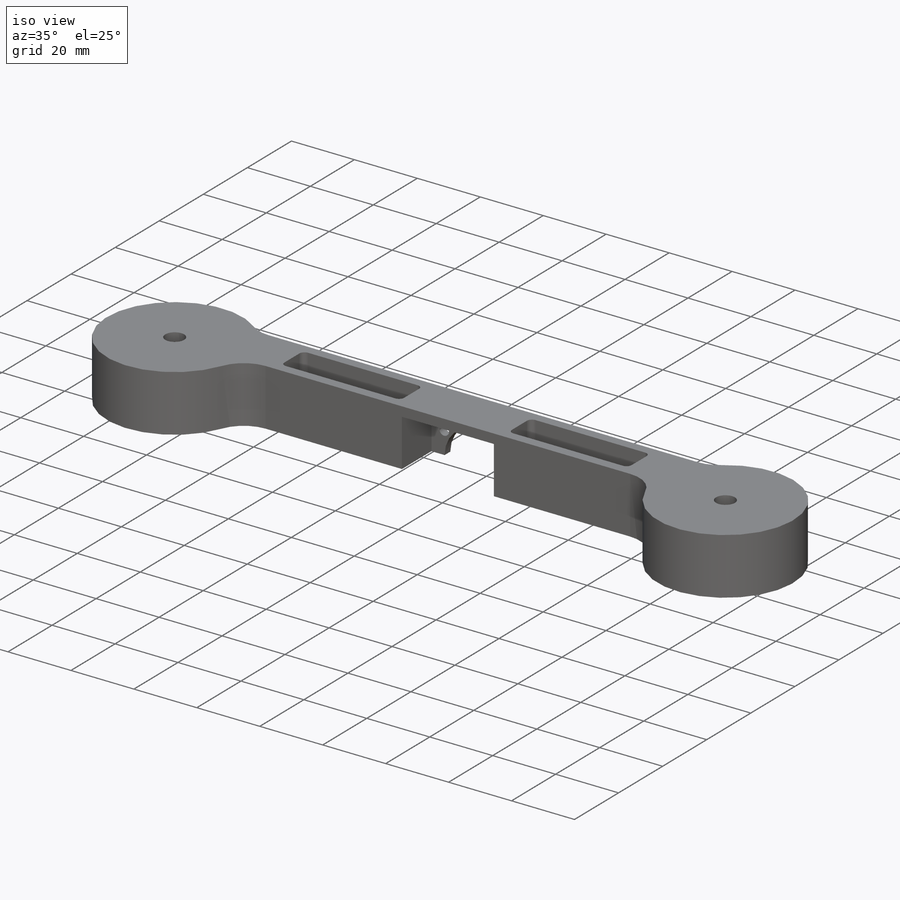
[diagram: iso view]
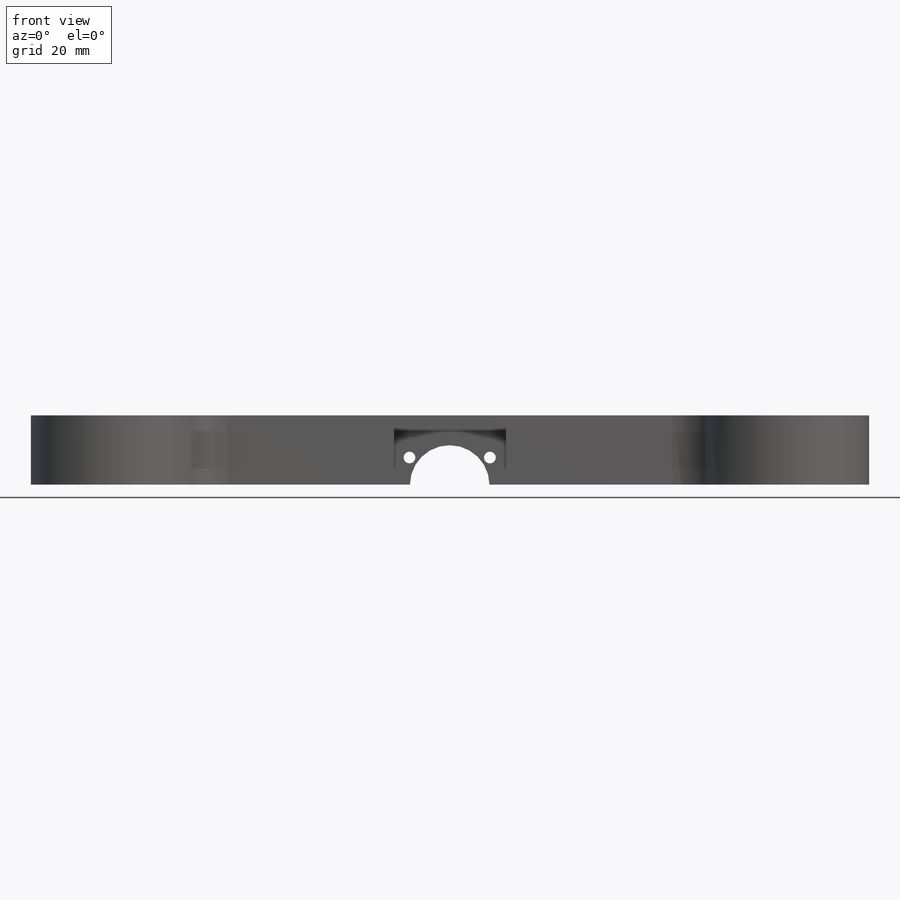
[diagram: front view]
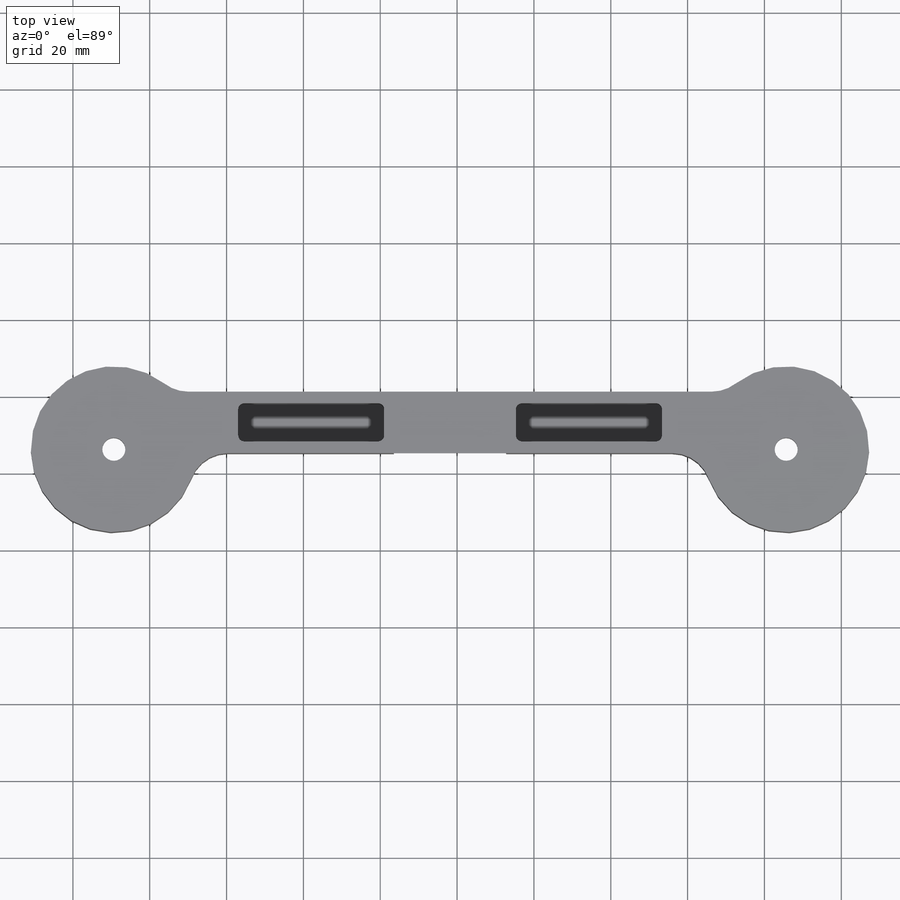
[diagram: top view]
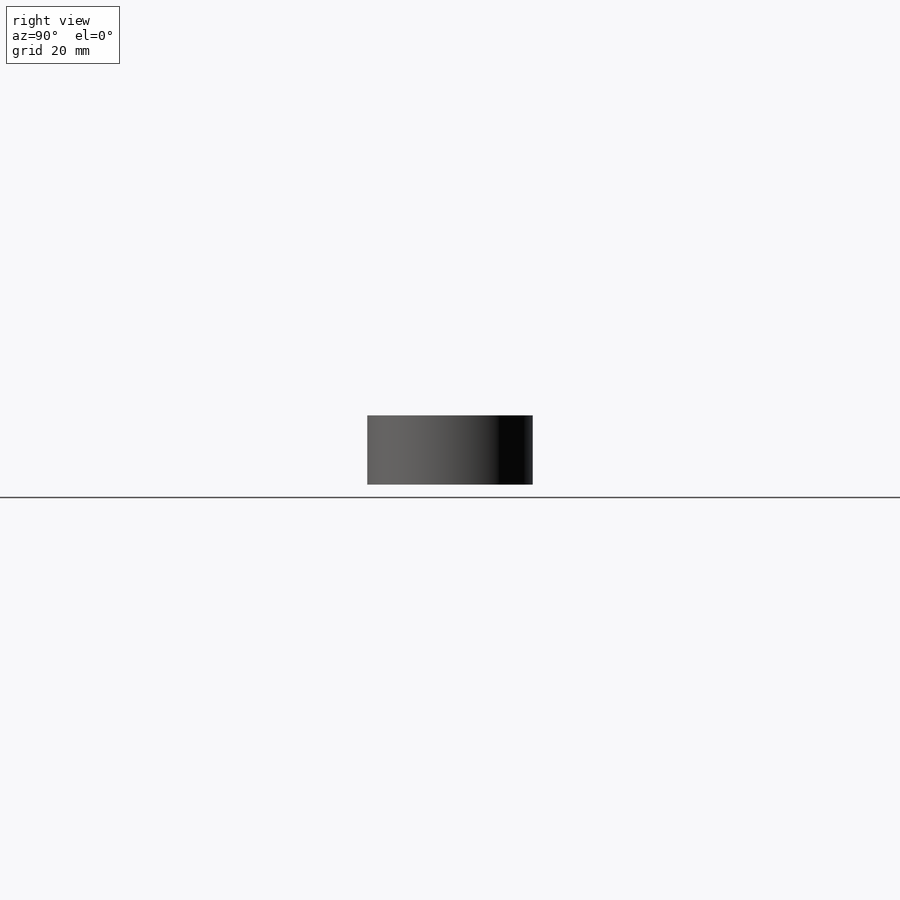
[diagram: right view]
SOLIDWORKS PART (.sldprt)
format: sldprt  version: not decoded by parser v0  size: 244,736 bytes
history: native  units: mm
features: sketch x7, cut_extrude x6, material x1, extrude x1 (+13 scaffold rows collapsed)
feature tree (28):
  scaffold x13  (default folders/planes/origin — collapsed)
  material  "6061 Alloy"
  sketch  "Sketch1"  dims[c1.D4=38.1mm c1.D1=38.1mm c1.D3=6.0mm c1.D6=10.0mm c2.D1=216.148mm c2.D2=175.0mm c2.D3=20.574mm c3.D1=2.54mm c3.D3=30.0mm c3.D5=15.0mm c3.D6=~132.786575mm c3.D7=1.0mm]
  extrude  "Extrude1"  Depth=18mm
  cut_extrude  "Extrude2"  [1 undecoded]
  sketch  "Sketch1<3>"  dims[D1=10.0mm]
  sketch  "Sketch2"  dims[D3=3.04mm D1=21.09mm D2=7.04mm]
  cut_extrude  "Extrude3"  [1 undecoded]
  sketch  "Sketch3"  dims[D1=29.21mm D2=3.0mm]
  cut_extrude  "Extrude4"  [1 undecoded]
  sketch  "Sketch6"  dims[D5=1.5875mm D1=17.145mm D2=5.0mm D3=10.0mm D4=38.0mm]
  cut_extrude  "Extrude6"  Depth=10mm
  sketch  "Sketch8"  dims[c1.D1=3.06mm c1.D3=3.06mm c1.D2=5.63mm c2.D3=2.85mm]
  cut_extrude  "Extrude7"  Depth=43mm
  sketch  "Sketch9"  dims[c1.D1=25.5mm c1.D2=19.18mm c1.D3=25.5mm c2.D1=20.704mm c2.D3=~0.407059mm]
  cut_extrude  "Extrude8"  [1 undecoded]
decode coverage: 10 of 14 modeling features carry decoded parameters
note: ~ marks probable driven/reference dimensions
note: 4 parameter values undecoded
summary: no parameter record found for 4 features
note: suppression state not decoded; provenance and decode notes live in map.json
